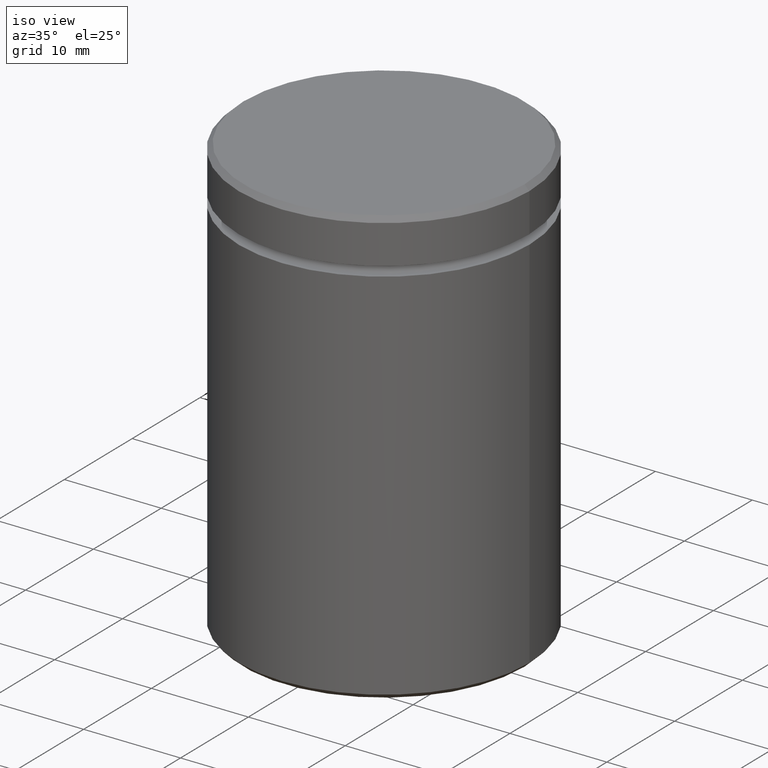
[diagram: clean part render]
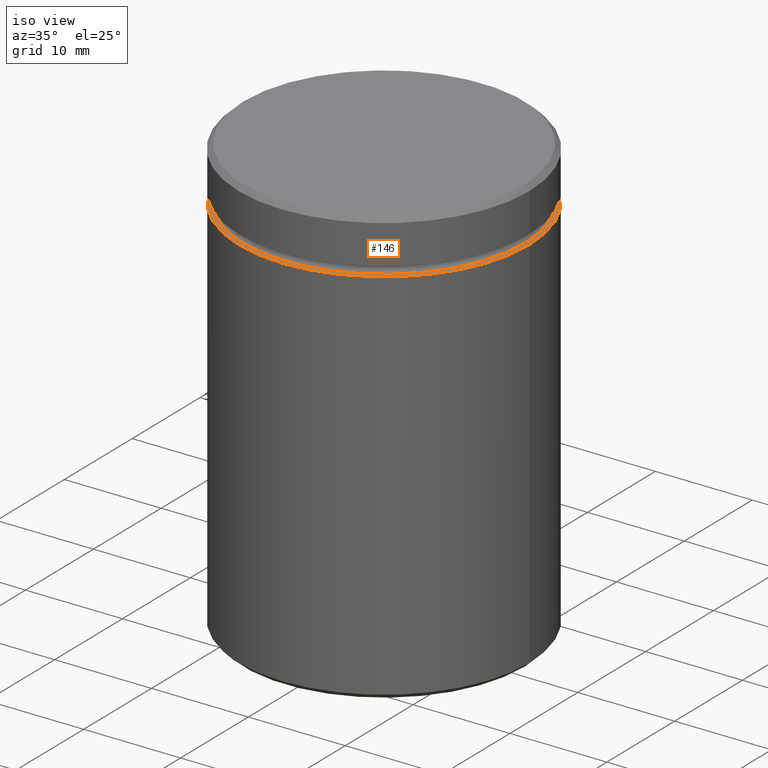
[diagram: same view with one face highlighted and labeled with its STEP entity id]
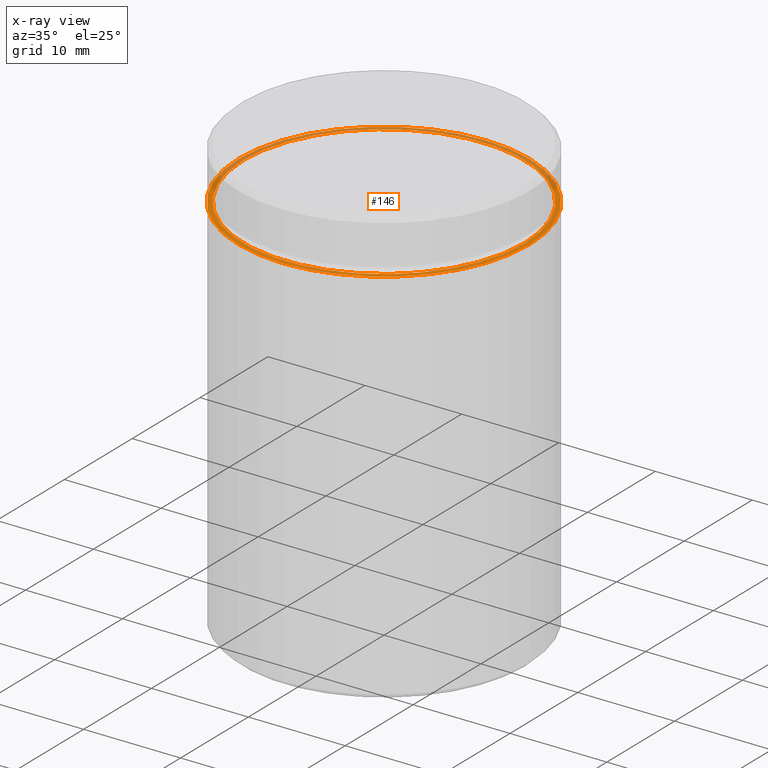
[diagram: x-ray of the same camera — body ghosted, the highlighted face saturated]
A machine part, iso view. The second image highlights one B-rep face of the part: STEP entity #146.
The next image is the same camera in x-ray: the body ghosted, the highlighted face saturated — about 45% of this face is hidden behind the body in this view.
In plain terms, the highlighted planar face has unit normal (0, -0, 1).
Its self-contained STEP definition (entity closure, byte-faithful):
#7 = DIRECTION ( 'NONE',  ( 1.000000000000000000, 0.000000000000000000, 0.000000000000000000 ) ) ;
#9 = EDGE_CURVE ( 'NONE', #413, #302, #107, .T. ) ;
#18 = DIRECTION ( 'NONE',  ( 0.000000000000000000, -0.000000000000000000, 1.000000000000000000 ) ) ;
#25 = CIRCLE ( 'NONE', #374, 15.00000000000000000 ) ;
#31 = CARTESIAN_POINT ( 'NONE',  ( 0.000000000000000000, 0.000000000000000000, -5.500000000000000000 ) ) ;
#39 = ORIENTED_EDGE ( 'NONE', *, *, #549, .T. ) ;
#53 = EDGE_LOOP ( 'NONE', ( #66, #39 ) ) ;
#54 = FACE_OUTER_BOUND ( 'NONE', #102, .T. ) ;
#65 = CARTESIAN_POINT ( 'NONE',  ( 14.49999999999999822, 0.000000000000000000, -5.500000000000000000 ) ) ;
#66 = ORIENTED_EDGE ( 'NONE', *, *, #9, .T. ) ;
#82 = ORIENTED_EDGE ( 'NONE', *, *, #373, .T. ) ;
#102 = EDGE_LOOP ( 'NONE', ( #82, #421 ) ) ;
#107 = CIRCLE ( 'NONE', #341, 14.49999999999999822 ) ;
#110 = AXIS2_PLACEMENT_3D ( 'NONE', #31, #124, #264 ) ;
#124 = DIRECTION ( 'NONE',  ( 0.000000000000000000, 0.000000000000000000, -1.000000000000000000 ) ) ;
#145 = PLANE ( 'NONE',  #219 ) ;
#146 = ADVANCED_FACE ( 'NONE', ( #496, #54 ), #145, .T. ) ;
#148 = VERTEX_POINT ( 'NONE', #499 ) ;
#174 = CIRCLE ( 'NONE', #110, 14.49999999999999822 ) ;
#183 = AXIS2_PLACEMENT_3D ( 'NONE', #193, #363, #537 ) ;
#193 = CARTESIAN_POINT ( 'NONE',  ( 0.000000000000000000, 0.000000000000000000, -5.500000000000000000 ) ) ;
#199 = DIRECTION ( 'NONE',  ( 1.000000000000000000, 0.000000000000000000, 0.000000000000000000 ) ) ;
#204 = CIRCLE ( 'NONE', #183, 15.00000000000000000 ) ;
#219 = AXIS2_PLACEMENT_3D ( 'NONE', #324, #18, #7 ) ;
#264 = DIRECTION ( 'NONE',  ( 1.000000000000000000, 0.000000000000000000, 0.000000000000000000 ) ) ;
#285 = EDGE_CURVE ( 'NONE', #288, #148, #204, .T. ) ;
#288 = VERTEX_POINT ( 'NONE', #332 ) ;
#295 = DIRECTION ( 'NONE',  ( -0.000000000000000000, -0.000000000000000000, 1.000000000000000000 ) ) ;
#302 = VERTEX_POINT ( 'NONE', #378 ) ;
#324 = CARTESIAN_POINT ( 'NONE',  ( 0.000000000000000000, 13.99999999999999822, -5.500000000000000000 ) ) ;
#332 = CARTESIAN_POINT ( 'NONE',  ( -15.00000000000000000, 1.836970198721029589E-15, -5.500000000000000000 ) ) ;
#341 = AXIS2_PLACEMENT_3D ( 'NONE', #344, #381, #391 ) ;
#344 = CARTESIAN_POINT ( 'NONE',  ( 0.000000000000000000, 0.000000000000000000, -5.500000000000000000 ) ) ;
#363 = DIRECTION ( 'NONE',  ( -0.000000000000000000, -0.000000000000000000, 1.000000000000000000 ) ) ;
#373 = EDGE_CURVE ( 'NONE', #148, #288, #25, .T. ) ;
#374 = AXIS2_PLACEMENT_3D ( 'NONE', #501, #295, #199 ) ;
#378 = CARTESIAN_POINT ( 'NONE',  ( -14.49999999999999822, 1.775737858763662015E-15, -5.500000000000000000 ) ) ;
#381 = DIRECTION ( 'NONE',  ( 0.000000000000000000, 0.000000000000000000, -1.000000000000000000 ) ) ;
#391 = DIRECTION ( 'NONE',  ( 1.000000000000000000, 0.000000000000000000, 0.000000000000000000 ) ) ;
#413 = VERTEX_POINT ( 'NONE', #65 ) ;
#421 = ORIENTED_EDGE ( 'NONE', *, *, #285, .T. ) ;
#496 = FACE_BOUND ( 'NONE', #53, .T. ) ;
#499 = CARTESIAN_POINT ( 'NONE',  ( 15.00000000000000000, 0.000000000000000000, -5.500000000000000000 ) ) ;
#501 = CARTESIAN_POINT ( 'NONE',  ( 0.000000000000000000, 0.000000000000000000, -5.500000000000000000 ) ) ;
#537 = DIRECTION ( 'NONE',  ( 1.000000000000000000, 0.000000000000000000, 0.000000000000000000 ) ) ;
#549 = EDGE_CURVE ( 'NONE', #302, #413, #174, .T. ) ;